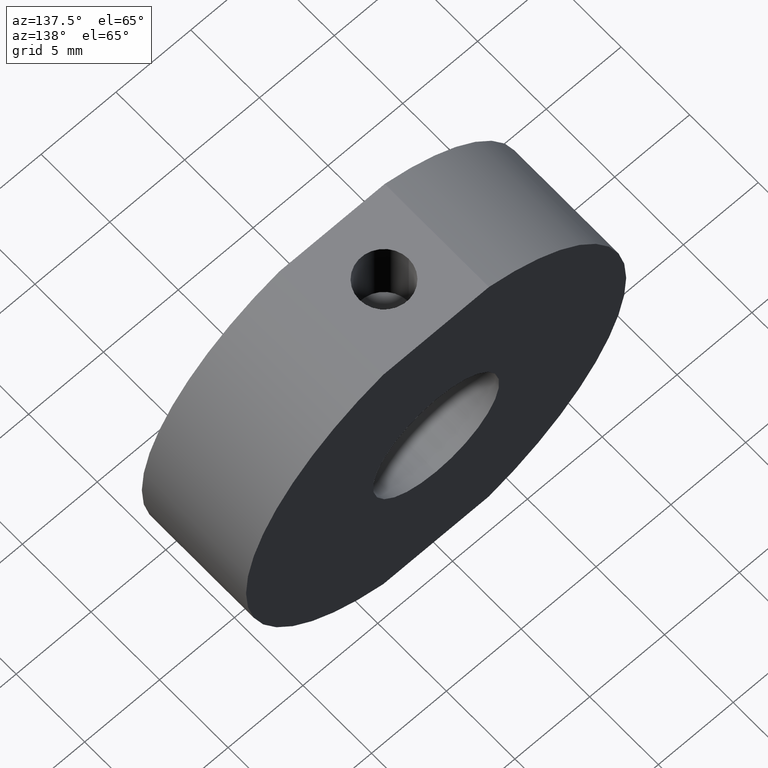
[diagram: clean part render]
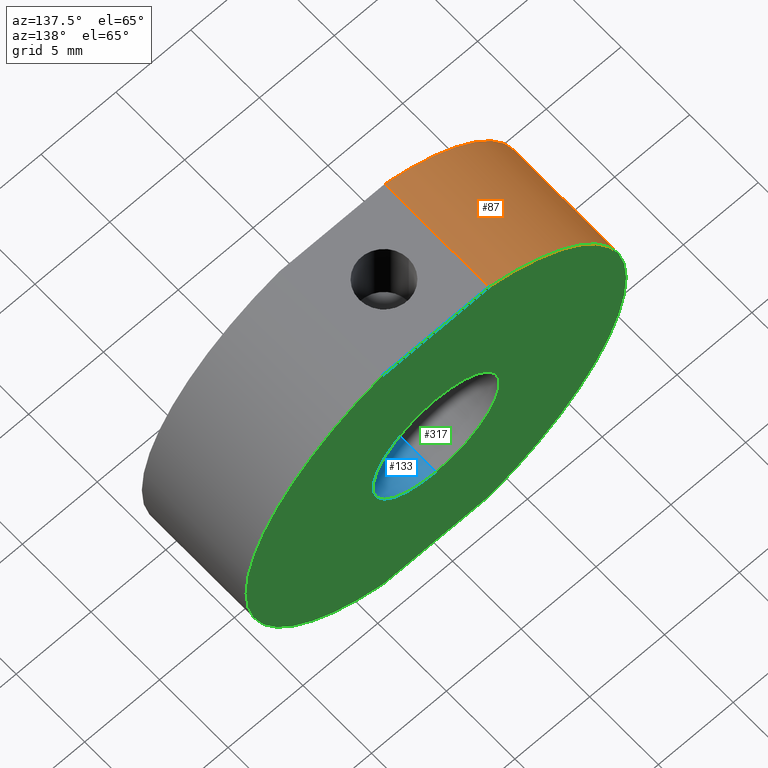
[diagram: same view with three faces highlighted in distinct colors, each labeled with its STEP entity id]
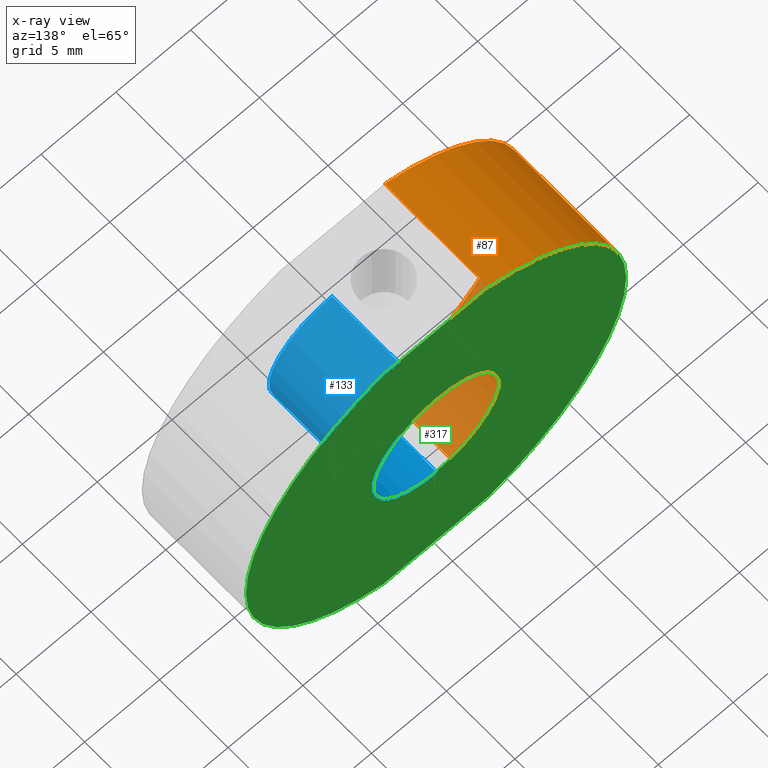
[diagram: x-ray of the same camera — body ghosted, the three highlighted faces saturated]
A machine part, auxiliary view with three faces highlighted in distinct colors.
The next image is the same camera in x-ray (body ghosted, the three faces saturated) — at least one of them is partly hidden behind the body in this view.
Their STEP definitions:

[orange] entity #87 — the highlighted cylindrical surface (partial cylindrical patch) has radius 12.7 mm, axis along (-0, -1, -0).
#1 = LINE ( 'NONE', #286, #390 ) ;
#6 = VERTEX_POINT ( 'NONE', #47 ) ;
#12 = DIRECTION ( 'NONE',  ( 0.0000000000000000000, 1.000000000000000000, 0.0000000000000000000 ) ) ;
#14 = EDGE_CURVE ( 'NONE', #355, #6, #314, .T. ) ;
#17 = CARTESIAN_POINT ( 'NONE',  ( -3.528455752875471400, -3.799999999999999400, -12.19999999999999900 ) ) ;
#28 = LINE ( 'NONE', #456, #489 ) ;
#30 = CARTESIAN_POINT ( 'NONE',  ( 0.0000000000000000000, 3.799999999999999800, 0.0000000000000000000 ) ) ;
#47 = CARTESIAN_POINT ( 'NONE',  ( -3.528455752875474500, -3.799999999999999800, 12.19999999999999900 ) ) ;
#75 = DIRECTION ( 'NONE',  ( 0.0000000000000000000, 1.000000000000000000, 0.0000000000000000000 ) ) ;
#87 = ADVANCED_FACE ( 'NONE', ( #211 ), #168, .T. ) ;
#99 = AXIS2_PLACEMENT_3D ( 'NONE', #30, #75, #303 ) ;
#106 = DIRECTION ( 'NONE',  ( -0.0000000000000000000, 1.000000000000000000, -0.0000000000000000000 ) ) ;
#109 = AXIS2_PLACEMENT_3D ( 'NONE', #488, #12, #397 ) ;
#128 = CARTESIAN_POINT ( 'NONE',  ( 0.0000000000000000000, 3.799999999999999800, 0.0000000000000000000 ) ) ;
#132 = CIRCLE ( 'NONE', #99, 12.69999999999999900 ) ;
#138 = ORIENTED_EDGE ( 'NONE', *, *, #198, .F. ) ;
#156 = ORIENTED_EDGE ( 'NONE', *, *, #326, .T. ) ;
#168 = CYLINDRICAL_SURFACE ( 'NONE', #249, 12.69999999999999900 ) ;
#198 = EDGE_CURVE ( 'NONE', #481, #328, #132, .T. ) ;
#211 = FACE_OUTER_BOUND ( 'NONE', #219, .T. ) ;
#213 = CARTESIAN_POINT ( 'NONE',  ( -3.528455752875468300, 3.799999999999999400, 12.19999999999999900 ) ) ;
#219 = EDGE_LOOP ( 'NONE', ( #276, #156, #138, #503 ) ) ;
#220 = DIRECTION ( 'NONE',  ( -0.0000000000000000000, 1.000000000000000000, -0.0000000000000000000 ) ) ;
#224 = DIRECTION ( 'NONE',  ( 0.0000000000000000000, 0.0000000000000000000, -1.000000000000000000 ) ) ;
#249 = AXIS2_PLACEMENT_3D ( 'NONE', #128, #363, #224 ) ;
#276 = ORIENTED_EDGE ( 'NONE', *, *, #14, .T. ) ;
#286 = CARTESIAN_POINT ( 'NONE',  ( -3.528455752875471400, -10.87460246232960000, -12.19999999999999900 ) ) ;
#303 = DIRECTION ( 'NONE',  ( 0.0000000000000000000, 0.0000000000000000000, 1.000000000000000000 ) ) ;
#308 = EDGE_CURVE ( 'NONE', #355, #481, #1, .T. ) ;
#314 = CIRCLE ( 'NONE', #109, 12.69999999999999900 ) ;
#326 = EDGE_CURVE ( 'NONE', #6, #328, #28, .T. ) ;
#328 = VERTEX_POINT ( 'NONE', #213 ) ;
#355 = VERTEX_POINT ( 'NONE', #17 ) ;
#363 = DIRECTION ( 'NONE',  ( -0.0000000000000000000, -1.000000000000000000, -0.0000000000000000000 ) ) ;
#390 = VECTOR ( 'NONE', #220, 1000.000000000000000 ) ;
#397 = DIRECTION ( 'NONE',  ( 0.0000000000000000000, 0.0000000000000000000, 1.000000000000000000 ) ) ;
#456 = CARTESIAN_POINT ( 'NONE',  ( -3.528455752875468300, -10.87460246232960000, 12.19999999999999900 ) ) ;
#472 = CARTESIAN_POINT ( 'NONE',  ( -3.528455752875471400, 3.799999999999999400, -12.19999999999999900 ) ) ;
#481 = VERTEX_POINT ( 'NONE', #472 ) ;
#488 = CARTESIAN_POINT ( 'NONE',  ( 0.0000000000000000000, -3.799999999999999800, 0.0000000000000000000 ) ) ;
#489 = VECTOR ( 'NONE', #106, 1000.000000000000000 ) ;
#503 = ORIENTED_EDGE ( 'NONE', *, *, #308, .F. ) ;

[blue] entity #133 — the highlighted cylindrical surface (partial cylindrical patch) has radius 4.2164 mm, axis along (-0, 1, -0).
#2 = EDGE_LOOP ( 'NONE', ( #139, #484, #486, #24 ) ) ;
#18 = DIRECTION ( 'NONE',  ( -0.0000000000000000000, 1.000000000000000000, -0.0000000000000000000 ) ) ;
#24 = ORIENTED_EDGE ( 'NONE', *, *, #54, .T. ) ;
#50 = CIRCLE ( 'NONE', #221, 4.216399999999988600 ) ;
#54 = EDGE_CURVE ( 'NONE', #262, #477, #50, .T. ) ;
#68 = DIRECTION ( 'NONE',  ( -0.0000000000000000000, 1.000000000000000000, -0.0000000000000000000 ) ) ;
#69 = LINE ( 'NONE', #142, #483 ) ;
#70 = CARTESIAN_POINT ( 'NONE',  ( 5.163600763924892400E-016, 3.799999999999999800, -4.216399999999993000 ) ) ;
#102 = DIRECTION ( 'NONE',  ( 0.0000000000000000000, 0.0000000000000000000, 1.000000000000000000 ) ) ;
#133 = ADVANCED_FACE ( 'NONE', ( #201 ), #305, .F. ) ;
#137 = DIRECTION ( 'NONE',  ( 0.0000000000000000000, 0.0000000000000000000, 1.000000000000000000 ) ) ;
#139 = ORIENTED_EDGE ( 'NONE', *, *, #368, .F. ) ;
#142 = CARTESIAN_POINT ( 'NONE',  ( 0.0000000000000000000, 3.799999999999999800, 4.216399999999993000 ) ) ;
#146 = CARTESIAN_POINT ( 'NONE',  ( 0.0000000000000000000, -3.799999999999998900, 4.216399999999998400 ) ) ;
#172 = CARTESIAN_POINT ( 'NONE',  ( 0.0000000000000000000, 3.800000000000000700, 0.0000000000000000000 ) ) ;
#177 = CARTESIAN_POINT ( 'NONE',  ( 5.163600763924899300E-016, -3.799999999999998900, -4.216399999999998400 ) ) ;
#201 = FACE_OUTER_BOUND ( 'NONE', #2, .T. ) ;
#204 = LINE ( 'NONE', #70, #329 ) ;
#221 = AXIS2_PLACEMENT_3D ( 'NONE', #172, #334, #137 ) ;
#254 = DIRECTION ( 'NONE',  ( -0.0000000000000000000, 1.000000000000000000, -0.0000000000000000000 ) ) ;
#256 = DIRECTION ( 'NONE',  ( 0.0000000000000000000, 0.0000000000000000000, 1.000000000000000000 ) ) ;
#262 = VERTEX_POINT ( 'NONE', #520 ) ;
#287 = CIRCLE ( 'NONE', #423, 4.216399999999998400 ) ;
#298 = DIRECTION ( 'NONE',  ( -0.0000000000000000000, 1.000000000000000000, -0.0000000000000000000 ) ) ;
#305 = CYLINDRICAL_SURFACE ( 'NONE', #428, 4.216399999999993000 ) ;
#310 = VERTEX_POINT ( 'NONE', #177 ) ;
#323 = EDGE_CURVE ( 'NONE', #453, #310, #287, .T. ) ;
#329 = VECTOR ( 'NONE', #298, 1000.000000000000000 ) ;
#330 = CARTESIAN_POINT ( 'NONE',  ( 0.0000000000000000000, -3.799999999999998900, 0.0000000000000000000 ) ) ;
#334 = DIRECTION ( 'NONE',  ( -0.0000000000000000000, 1.000000000000000000, -0.0000000000000000000 ) ) ;
#335 = EDGE_CURVE ( 'NONE', #453, #262, #69, .T. ) ;
#368 = EDGE_CURVE ( 'NONE', #310, #477, #204, .T. ) ;
#423 = AXIS2_PLACEMENT_3D ( 'NONE', #330, #254, #102 ) ;
#428 = AXIS2_PLACEMENT_3D ( 'NONE', #507, #68, #256 ) ;
#453 = VERTEX_POINT ( 'NONE', #146 ) ;
#468 = CARTESIAN_POINT ( 'NONE',  ( 5.163600763924888500E-016, 3.800000000000000700, -4.216399999999988600 ) ) ;
#477 = VERTEX_POINT ( 'NONE', #468 ) ;
#483 = VECTOR ( 'NONE', #18, 1000.000000000000000 ) ;
#484 = ORIENTED_EDGE ( 'NONE', *, *, #323, .F. ) ;
#486 = ORIENTED_EDGE ( 'NONE', *, *, #335, .T. ) ;
#507 = CARTESIAN_POINT ( 'NONE',  ( 0.0000000000000000000, 3.799999999999999800, 0.0000000000000000000 ) ) ;
#520 = CARTESIAN_POINT ( 'NONE',  ( 0.0000000000000000000, 3.800000000000000700, 4.216399999999988600 ) ) ;

[green] entity #317 — the highlighted planar face has unit normal (0, 1, 0).
#21 = FACE_BOUND ( 'NONE', #46, .T. ) ;
#25 = DIRECTION ( 'NONE',  ( 0.0000000000000000000, 1.000000000000000000, 0.0000000000000000000 ) ) ;
#30 = CARTESIAN_POINT ( 'NONE',  ( 0.0000000000000000000, 3.799999999999999800, 0.0000000000000000000 ) ) ;
#33 = CARTESIAN_POINT ( 'NONE',  ( 0.0000000000000000000, 3.800000000000000700, 0.0000000000000000000 ) ) ;
#46 = EDGE_LOOP ( 'NONE', ( #180, #384 ) ) ;
#49 = AXIS2_PLACEMENT_3D ( 'NONE', #33, #522, #271 ) ;
#50 = CIRCLE ( 'NONE', #221, 4.216399999999988600 ) ;
#51 = ORIENTED_EDGE ( 'NONE', *, *, #290, .T. ) ;
#54 = EDGE_CURVE ( 'NONE', #262, #477, #50, .T. ) ;
#55 = ORIENTED_EDGE ( 'NONE', *, *, #145, .F. ) ;
#56 = CARTESIAN_POINT ( 'NONE',  ( 3.528455752875468300, 3.799999999999999400, 12.19999999999999900 ) ) ;
#59 = DIRECTION ( 'NONE',  ( 1.000000000000000000, -0.0000000000000000000, 0.0000000000000000000 ) ) ;
#66 = CARTESIAN_POINT ( 'NONE',  ( 0.0000000000000000000, 3.799999999999999800, 0.0000000000000000000 ) ) ;
#75 = DIRECTION ( 'NONE',  ( 0.0000000000000000000, 1.000000000000000000, 0.0000000000000000000 ) ) ;
#85 = CIRCLE ( 'NONE', #49, 4.216399999999988600 ) ;
#98 = DIRECTION ( 'NONE',  ( 0.0000000000000000000, -0.0000000000000000000, 1.000000000000000000 ) ) ;
#99 = AXIS2_PLACEMENT_3D ( 'NONE', #30, #75, #303 ) ;
#121 = LINE ( 'NONE', #147, #459 ) ;
#126 = VECTOR ( 'NONE', #185, 1000.000000000000000 ) ;
#132 = CIRCLE ( 'NONE', #99, 12.69999999999999900 ) ;
#137 = DIRECTION ( 'NONE',  ( 0.0000000000000000000, 0.0000000000000000000, 1.000000000000000000 ) ) ;
#145 = EDGE_CURVE ( 'NONE', #481, #207, #121, .T. ) ;
#147 = CARTESIAN_POINT ( 'NONE',  ( -3.528455752875471400, 3.799999999999999400, -12.19999999999999900 ) ) ;
#162 = ORIENTED_EDGE ( 'NONE', *, *, #167, .F. ) ;
#167 = EDGE_CURVE ( 'NONE', #302, #328, #445, .T. ) ;
#172 = CARTESIAN_POINT ( 'NONE',  ( 0.0000000000000000000, 3.800000000000000700, 0.0000000000000000000 ) ) ;
#180 = ORIENTED_EDGE ( 'NONE', *, *, #54, .F. ) ;
#183 = DIRECTION ( 'NONE',  ( 0.0000000000000000000, 0.0000000000000000000, 1.000000000000000000 ) ) ;
#185 = DIRECTION ( 'NONE',  ( -1.000000000000000000, 0.0000000000000000000, -0.0000000000000000000 ) ) ;
#190 = EDGE_CURVE ( 'NONE', #477, #262, #85, .T. ) ;
#198 = EDGE_CURVE ( 'NONE', #481, #328, #132, .T. ) ;
#207 = VERTEX_POINT ( 'NONE', #422 ) ;
#213 = CARTESIAN_POINT ( 'NONE',  ( -3.528455752875468300, 3.799999999999999400, 12.19999999999999900 ) ) ;
#221 = AXIS2_PLACEMENT_3D ( 'NONE', #172, #334, #137 ) ;
#250 = ORIENTED_EDGE ( 'NONE', *, *, #198, .T. ) ;
#258 = DIRECTION ( 'NONE',  ( 0.0000000000000000000, 1.000000000000000000, 0.0000000000000000000 ) ) ;
#262 = VERTEX_POINT ( 'NONE', #520 ) ;
#271 = DIRECTION ( 'NONE',  ( 0.0000000000000000000, 0.0000000000000000000, 1.000000000000000000 ) ) ;
#290 = EDGE_CURVE ( 'NONE', #302, #207, #414, .T. ) ;
#297 = AXIS2_PLACEMENT_3D ( 'NONE', #66, #25, #183 ) ;
#302 = VERTEX_POINT ( 'NONE', #56 ) ;
#303 = DIRECTION ( 'NONE',  ( 0.0000000000000000000, 0.0000000000000000000, 1.000000000000000000 ) ) ;
#317 = ADVANCED_FACE ( 'NONE', ( #519, #21 ), #500, .T. ) ;
#328 = VERTEX_POINT ( 'NONE', #213 ) ;
#331 = CARTESIAN_POINT ( 'NONE',  ( 0.0000000000000000000, 3.799999999999999800, 0.0000000000000000000 ) ) ;
#334 = DIRECTION ( 'NONE',  ( -0.0000000000000000000, 1.000000000000000000, -0.0000000000000000000 ) ) ;
#351 = EDGE_LOOP ( 'NONE', ( #162, #51, #55, #250 ) ) ;
#384 = ORIENTED_EDGE ( 'NONE', *, *, #190, .F. ) ;
#389 = AXIS2_PLACEMENT_3D ( 'NONE', #331, #258, #98 ) ;
#414 = CIRCLE ( 'NONE', #297, 12.69999999999999900 ) ;
#422 = CARTESIAN_POINT ( 'NONE',  ( 3.528455752875471400, 3.799999999999999400, -12.19999999999999900 ) ) ;
#445 = LINE ( 'NONE', #460, #126 ) ;
#459 = VECTOR ( 'NONE', #59, 1000.000000000000000 ) ;
#460 = CARTESIAN_POINT ( 'NONE',  ( -3.528455752875468300, 3.799999999999999400, 12.19999999999999900 ) ) ;
#468 = CARTESIAN_POINT ( 'NONE',  ( 5.163600763924888500E-016, 3.800000000000000700, -4.216399999999988600 ) ) ;
#472 = CARTESIAN_POINT ( 'NONE',  ( -3.528455752875471400, 3.799999999999999400, -12.19999999999999900 ) ) ;
#477 = VERTEX_POINT ( 'NONE', #468 ) ;
#481 = VERTEX_POINT ( 'NONE', #472 ) ;
#500 = PLANE ( 'NONE',  #389 ) ;
#519 = FACE_OUTER_BOUND ( 'NONE', #351, .T. ) ;
#520 = CARTESIAN_POINT ( 'NONE',  ( 0.0000000000000000000, 3.800000000000000700, 4.216399999999988600 ) ) ;
#522 = DIRECTION ( 'NONE',  ( -0.0000000000000000000, 1.000000000000000000, -0.0000000000000000000 ) ) ;